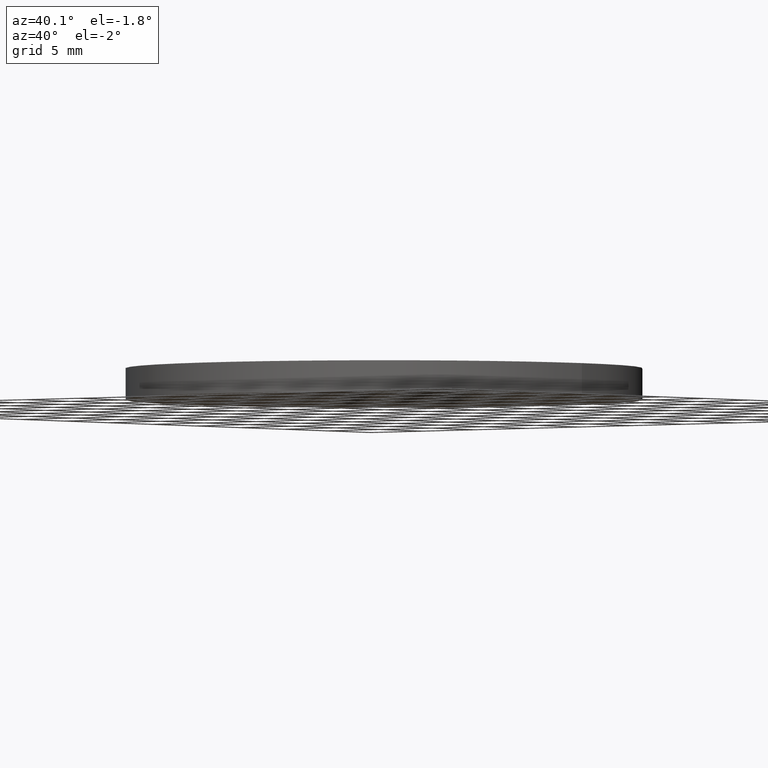
[diagram: clean part render]
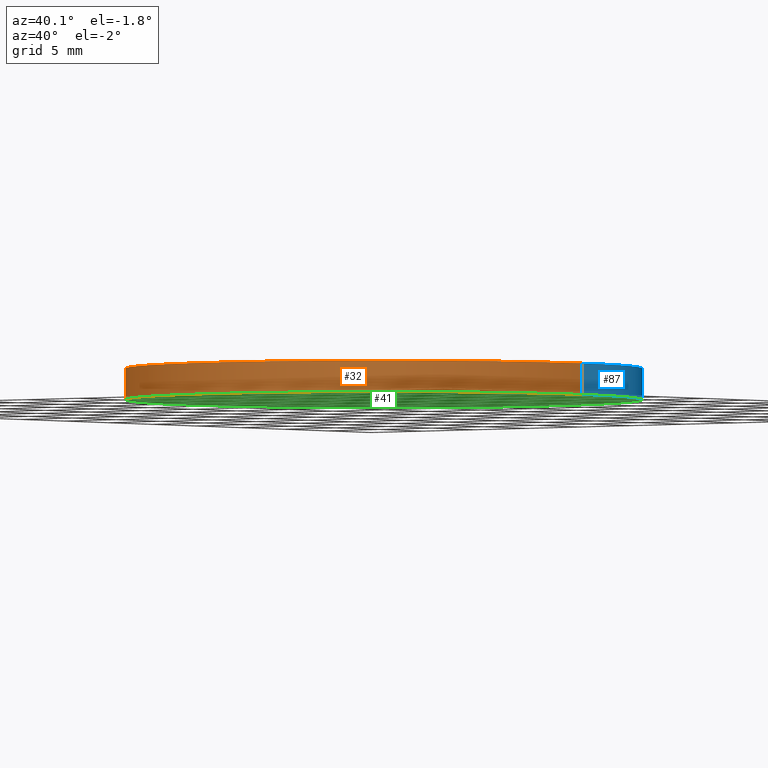
[diagram: same view with three faces highlighted in distinct colors, each labeled with its STEP entity id]
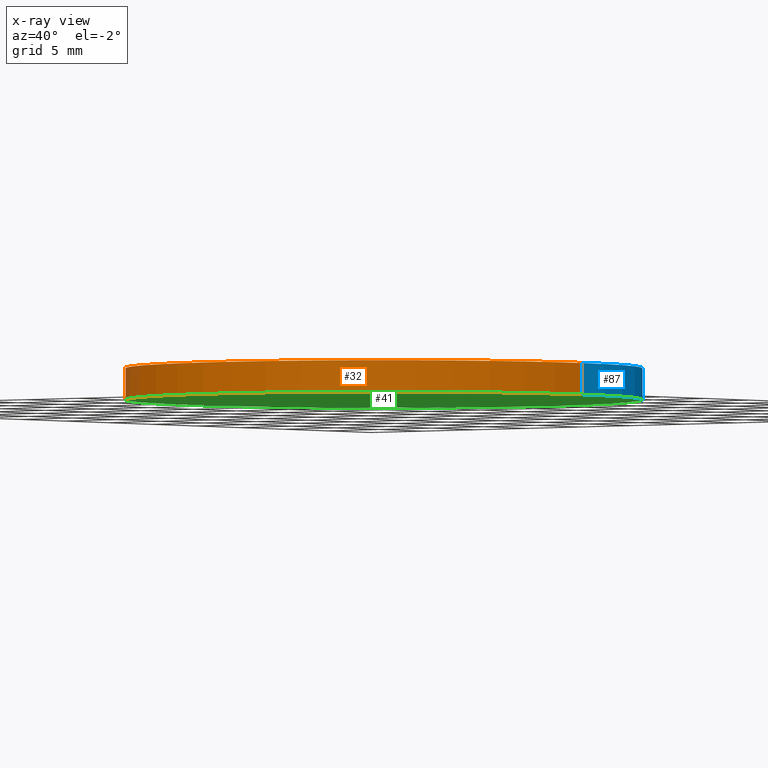
[diagram: x-ray of the same camera — body ghosted, the three highlighted faces saturated]
A machine part, auxiliary view with three faces highlighted in distinct colors.
The next image is the same camera in x-ray (body ghosted, the three faces saturated) — at least one of them is partly hidden behind the body in this view.
Their STEP definitions:

[orange] entity #32 — the highlighted cylindrical surface (partial cylindrical patch) has radius 19 mm, axis along (-0, -0, -1).
#4 = VECTOR ( 'NONE', #96, 1000.000000000000000 ) ;
#8 = EDGE_CURVE ( 'NONE', #49, #131, #66, .T. ) ;
#14 = EDGE_CURVE ( 'NONE', #49, #139, #59, .T. ) ;
#16 = FACE_OUTER_BOUND ( 'NONE', #23, .T. ) ;
#19 = CARTESIAN_POINT ( 'NONE',  ( 89.61498394228370000, 61.56557006861266500, 2.299999999999999800 ) ) ;
#23 = EDGE_LOOP ( 'NONE', ( #104, #74, #42, #25 ) ) ;
#25 = ORIENTED_EDGE ( 'NONE', *, *, #111, .T. ) ;
#27 = DIRECTION ( 'NONE',  ( 1.000000000000000000, 0.0000000000000000000, 0.0000000000000000000 ) ) ;
#28 = DIRECTION ( 'NONE',  ( -0.0000000000000000000, -0.0000000000000000000, -1.000000000000000000 ) ) ;
#32 = ADVANCED_FACE ( 'NONE', ( #16 ), #78, .T. ) ;
#34 = VECTOR ( 'NONE', #38, 1000.000000000000000 ) ;
#36 = DIRECTION ( 'NONE',  ( 0.0000000000000000000, 0.0000000000000000000, 1.000000000000000000 ) ) ;
#38 = DIRECTION ( 'NONE',  ( -0.0000000000000000000, -0.0000000000000000000, -1.000000000000000000 ) ) ;
#42 = ORIENTED_EDGE ( 'NONE', *, *, #14, .T. ) ;
#47 = CARTESIAN_POINT ( 'NONE',  ( 89.61498394228370000, 61.56557006861266500, 0.0000000000000000000 ) ) ;
#48 = CARTESIAN_POINT ( 'NONE',  ( 89.61498394228370000, 61.56557006861266500, 2.299999999999999800 ) ) ;
#49 = VERTEX_POINT ( 'NONE', #48 ) ;
#55 = AXIS2_PLACEMENT_3D ( 'NONE', #82, #132, #134 ) ;
#56 = CIRCLE ( 'NONE', #55, 18.99999999999998900 ) ;
#58 = AXIS2_PLACEMENT_3D ( 'NONE', #117, #36, #27 ) ;
#59 = LINE ( 'NONE', #19, #4 ) ;
#66 = CIRCLE ( 'NONE', #58, 18.99999999999998900 ) ;
#68 = EDGE_CURVE ( 'NONE', #131, #109, #128, .T. ) ;
#69 = DIRECTION ( 'NONE',  ( -1.000000000000000000, 0.0000000000000000000, 0.0000000000000000000 ) ) ;
#74 = ORIENTED_EDGE ( 'NONE', *, *, #8, .F. ) ;
#78 = CYLINDRICAL_SURFACE ( 'NONE', #113, 18.99999999999998900 ) ;
#82 = CARTESIAN_POINT ( 'NONE',  ( 108.6149839422837000, 61.56557006861266500, 0.0000000000000000000 ) ) ;
#85 = CARTESIAN_POINT ( 'NONE',  ( 108.6149839422837000, 61.56557006861266500, 2.299999999999999800 ) ) ;
#91 = CARTESIAN_POINT ( 'NONE',  ( 127.6149839422836900, 61.56557006861266500, 2.299999999999999800 ) ) ;
#96 = DIRECTION ( 'NONE',  ( -0.0000000000000000000, -0.0000000000000000000, -1.000000000000000000 ) ) ;
#102 = CARTESIAN_POINT ( 'NONE',  ( 127.6149839422836900, 61.56557006861266500, 0.0000000000000000000 ) ) ;
#104 = ORIENTED_EDGE ( 'NONE', *, *, #68, .F. ) ;
#109 = VERTEX_POINT ( 'NONE', #102 ) ;
#111 = EDGE_CURVE ( 'NONE', #139, #109, #56, .T. ) ;
#113 = AXIS2_PLACEMENT_3D ( 'NONE', #85, #28, #69 ) ;
#117 = CARTESIAN_POINT ( 'NONE',  ( 108.6149839422837000, 61.56557006861266500, 2.299999999999999800 ) ) ;
#128 = LINE ( 'NONE', #137, #34 ) ;
#131 = VERTEX_POINT ( 'NONE', #91 ) ;
#132 = DIRECTION ( 'NONE',  ( 0.0000000000000000000, 0.0000000000000000000, 1.000000000000000000 ) ) ;
#134 = DIRECTION ( 'NONE',  ( 1.000000000000000000, 0.0000000000000000000, 0.0000000000000000000 ) ) ;
#137 = CARTESIAN_POINT ( 'NONE',  ( 127.6149839422836900, 61.56557006861266500, 2.299999999999999800 ) ) ;
#139 = VERTEX_POINT ( 'NONE', #47 ) ;

[blue] entity #87 — the highlighted cylindrical surface (partial cylindrical patch) has radius 19 mm, axis along (-0, -0, -1).
#1 = ORIENTED_EDGE ( 'NONE', *, *, #14, .F. ) ;
#4 = VECTOR ( 'NONE', #96, 1000.000000000000000 ) ;
#7 = DIRECTION ( 'NONE',  ( 1.000000000000000000, 0.0000000000000000000, 0.0000000000000000000 ) ) ;
#14 = EDGE_CURVE ( 'NONE', #49, #139, #59, .T. ) ;
#15 = DIRECTION ( 'NONE',  ( 0.0000000000000000000, 0.0000000000000000000, 1.000000000000000000 ) ) ;
#19 = CARTESIAN_POINT ( 'NONE',  ( 89.61498394228370000, 61.56557006861266500, 2.299999999999999800 ) ) ;
#24 = EDGE_LOOP ( 'NONE', ( #88, #130, #43, #1 ) ) ;
#30 = FACE_OUTER_BOUND ( 'NONE', #24, .T. ) ;
#34 = VECTOR ( 'NONE', #38, 1000.000000000000000 ) ;
#38 = DIRECTION ( 'NONE',  ( -0.0000000000000000000, -0.0000000000000000000, -1.000000000000000000 ) ) ;
#43 = ORIENTED_EDGE ( 'NONE', *, *, #63, .T. ) ;
#47 = CARTESIAN_POINT ( 'NONE',  ( 89.61498394228370000, 61.56557006861266500, 0.0000000000000000000 ) ) ;
#48 = CARTESIAN_POINT ( 'NONE',  ( 89.61498394228370000, 61.56557006861266500, 2.299999999999999800 ) ) ;
#49 = VERTEX_POINT ( 'NONE', #48 ) ;
#50 = CARTESIAN_POINT ( 'NONE',  ( 108.6149839422837000, 61.56557006861266500, 2.299999999999999800 ) ) ;
#52 = DIRECTION ( 'NONE',  ( -0.0000000000000000000, -0.0000000000000000000, -1.000000000000000000 ) ) ;
#53 = AXIS2_PLACEMENT_3D ( 'NONE', #64, #15, #7 ) ;
#59 = LINE ( 'NONE', #19, #4 ) ;
#63 = EDGE_CURVE ( 'NONE', #109, #139, #89, .T. ) ;
#64 = CARTESIAN_POINT ( 'NONE',  ( 108.6149839422837000, 61.56557006861266500, 0.0000000000000000000 ) ) ;
#65 = AXIS2_PLACEMENT_3D ( 'NONE', #114, #52, #81 ) ;
#68 = EDGE_CURVE ( 'NONE', #131, #109, #128, .T. ) ;
#81 = DIRECTION ( 'NONE',  ( -1.000000000000000000, 0.0000000000000000000, 0.0000000000000000000 ) ) ;
#86 = CIRCLE ( 'NONE', #95, 18.99999999999998900 ) ;
#87 = ADVANCED_FACE ( 'NONE', ( #30 ), #140, .T. ) ;
#88 = ORIENTED_EDGE ( 'NONE', *, *, #108, .F. ) ;
#89 = CIRCLE ( 'NONE', #53, 18.99999999999998900 ) ;
#91 = CARTESIAN_POINT ( 'NONE',  ( 127.6149839422836900, 61.56557006861266500, 2.299999999999999800 ) ) ;
#95 = AXIS2_PLACEMENT_3D ( 'NONE', #50, #123, #115 ) ;
#96 = DIRECTION ( 'NONE',  ( -0.0000000000000000000, -0.0000000000000000000, -1.000000000000000000 ) ) ;
#102 = CARTESIAN_POINT ( 'NONE',  ( 127.6149839422836900, 61.56557006861266500, 0.0000000000000000000 ) ) ;
#108 = EDGE_CURVE ( 'NONE', #131, #49, #86, .T. ) ;
#109 = VERTEX_POINT ( 'NONE', #102 ) ;
#114 = CARTESIAN_POINT ( 'NONE',  ( 108.6149839422837000, 61.56557006861266500, 2.299999999999999800 ) ) ;
#115 = DIRECTION ( 'NONE',  ( 1.000000000000000000, 0.0000000000000000000, 0.0000000000000000000 ) ) ;
#123 = DIRECTION ( 'NONE',  ( 0.0000000000000000000, 0.0000000000000000000, 1.000000000000000000 ) ) ;
#128 = LINE ( 'NONE', #137, #34 ) ;
#130 = ORIENTED_EDGE ( 'NONE', *, *, #68, .T. ) ;
#131 = VERTEX_POINT ( 'NONE', #91 ) ;
#137 = CARTESIAN_POINT ( 'NONE',  ( 127.6149839422836900, 61.56557006861266500, 2.299999999999999800 ) ) ;
#139 = VERTEX_POINT ( 'NONE', #47 ) ;
#140 = CYLINDRICAL_SURFACE ( 'NONE', #65, 18.99999999999998900 ) ;

[green] entity #41 — the highlighted planar face has unit normal (0, 0, 1).
#3 = CARTESIAN_POINT ( 'NONE',  ( 108.6149839422837000, 61.56557006861266500, 0.0000000000000000000 ) ) ;
#7 = DIRECTION ( 'NONE',  ( 1.000000000000000000, 0.0000000000000000000, 0.0000000000000000000 ) ) ;
#15 = DIRECTION ( 'NONE',  ( 0.0000000000000000000, 0.0000000000000000000, 1.000000000000000000 ) ) ;
#17 = PLANE ( 'NONE',  #39 ) ;
#37 = FACE_OUTER_BOUND ( 'NONE', #120, .T. ) ;
#39 = AXIS2_PLACEMENT_3D ( 'NONE', #3, #70, #116 ) ;
#41 = ADVANCED_FACE ( 'NONE', ( #37 ), #17, .F. ) ;
#47 = CARTESIAN_POINT ( 'NONE',  ( 89.61498394228370000, 61.56557006861266500, 0.0000000000000000000 ) ) ;
#53 = AXIS2_PLACEMENT_3D ( 'NONE', #64, #15, #7 ) ;
#54 = ORIENTED_EDGE ( 'NONE', *, *, #63, .F. ) ;
#55 = AXIS2_PLACEMENT_3D ( 'NONE', #82, #132, #134 ) ;
#56 = CIRCLE ( 'NONE', #55, 18.99999999999998900 ) ;
#63 = EDGE_CURVE ( 'NONE', #109, #139, #89, .T. ) ;
#64 = CARTESIAN_POINT ( 'NONE',  ( 108.6149839422837000, 61.56557006861266500, 0.0000000000000000000 ) ) ;
#70 = DIRECTION ( 'NONE',  ( 0.0000000000000000000, 0.0000000000000000000, 1.000000000000000000 ) ) ;
#77 = ORIENTED_EDGE ( 'NONE', *, *, #111, .F. ) ;
#82 = CARTESIAN_POINT ( 'NONE',  ( 108.6149839422837000, 61.56557006861266500, 0.0000000000000000000 ) ) ;
#89 = CIRCLE ( 'NONE', #53, 18.99999999999998900 ) ;
#102 = CARTESIAN_POINT ( 'NONE',  ( 127.6149839422836900, 61.56557006861266500, 0.0000000000000000000 ) ) ;
#109 = VERTEX_POINT ( 'NONE', #102 ) ;
#111 = EDGE_CURVE ( 'NONE', #139, #109, #56, .T. ) ;
#116 = DIRECTION ( 'NONE',  ( 1.000000000000000000, 0.0000000000000000000, -0.0000000000000000000 ) ) ;
#120 = EDGE_LOOP ( 'NONE', ( #77, #54 ) ) ;
#132 = DIRECTION ( 'NONE',  ( 0.0000000000000000000, 0.0000000000000000000, 1.000000000000000000 ) ) ;
#134 = DIRECTION ( 'NONE',  ( 1.000000000000000000, 0.0000000000000000000, 0.0000000000000000000 ) ) ;
#139 = VERTEX_POINT ( 'NONE', #47 ) ;